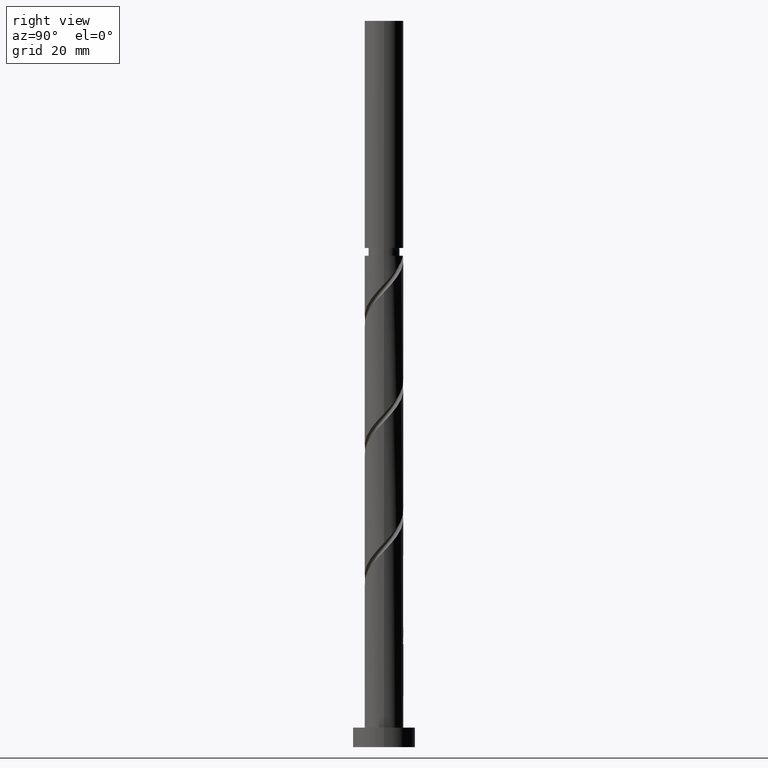
[diagram: clean part render]
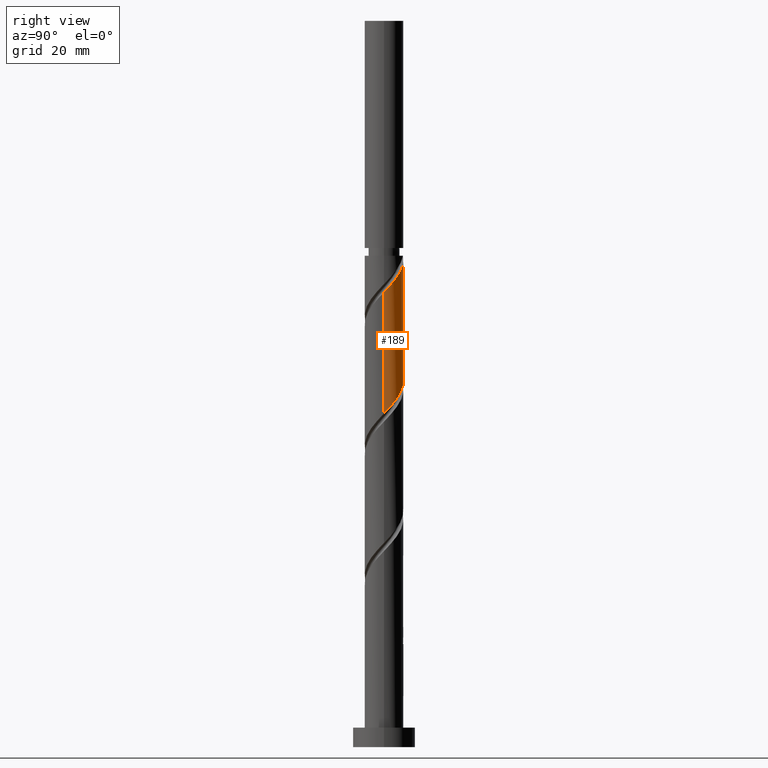
[diagram: same view with one face highlighted and labeled with its STEP entity id]
A machine part, right view. The second image highlights one B-rep face of the part: STEP entity #189.
In plain terms, the highlighted cylindrical surface (edge-blend (fillet) strip) has radius 5 mm, axis along (-0, -0, -1).
Its self-contained STEP definition (entity closure, byte-faithful):
#31 = DIRECTION ( 'NONE',  ( -0.000000000000000000, -0.000000000000000000, -1.000000000000000000 ) ) ;
#91 = CARTESIAN_POINT ( 'NONE',  ( 0.9949874371066220746, 4.899999999999997691, 93.19802294013305755 ) ) ;
#163 =( BOUNDED_CURVE ( )  B_SPLINE_CURVE ( 2, ( #531, #1087, #695, #288, #683, #1359, #1618, #996, #1523, #868, #741, #1399, #598, #1578, #91, #1298, #504, #916, #1609, #1716, #386, #250, #676, #1204, #405, #284, #801 ),
 .UNSPECIFIED., .F., .T. ) 
 B_SPLINE_CURVE_WITH_KNOTS ( ( 3, 2, 2, 2, 2, 2, 2, 2, 2, 2, 2, 2, 2, 3 ),
 ( 0.4295317669814462391, 0.4375000000000000000, 0.4479166666666666852, 0.4583333333333333148, 0.4687500000000000000, 0.4791666666666666852, 0.4895833333333333148, 0.5000000000000000000, 0.5104166666666666297, 0.5208333333333333703, 0.5312500000000000000, 0.5416666666666666297, 0.5520833333333333703, 0.5545317669814462391 ),
 .UNSPECIFIED. ) 
 CURVE ( )  GEOMETRIC_REPRESENTATION_ITEM ( )  RATIONAL_B_SPLINE_CURVE ( ( 0.9062941362546302893, 0.9031415850403345935, 0.9090909090909098378, 0.9013135103398283166, 0.9090909090909098378, 0.9013135103398283166, 0.9090909090909098378, 0.9013135103398283166, 0.9090909090909098378, 0.9013135103398283166, 0.9090909090909098378, 0.9013135103398283166, 0.9090909090909098378, 0.9013135103398283166, 0.9090909090909098378, 0.9013135103398283166, 0.9090909090909098378, 0.9013135103398283166, 0.9090909090909098378, 0.9013135103398283166, 0.9090909090909098378, 0.9013135103398283166, 0.9090909090909098378, 0.9013135103398283166, 0.9090909090909098378, 0.9072628343904035608, 0.9062941362546301782 ) ) 
 REPRESENTATION_ITEM ( '' )  );
#183 = AXIS2_PLACEMENT_3D ( 'NONE', #412, #672, #1466 ) ;
#189 = ADVANCED_FACE ( 'NONE', ( #1095 ), #800, .T. ) ;
#224 = CARTESIAN_POINT ( 'NONE',  ( 4.475514850455503790, 2.229297383336807936, 119.5869118290219149 ) ) ;
#250 = CARTESIAN_POINT ( 'NONE',  ( 4.531912481002539295, 2.212482489774409533, 88.33691182902195749 ) ) ;
#284 = CARTESIAN_POINT ( 'NONE',  ( 4.999999999999998224, 0.1537097582883687474, 86.09141995003794534 ) ) ;
#288 = CARTESIAN_POINT ( 'NONE',  ( -4.769007418836828549, 1.640084675284861015, 100.8369118290219291 ) ) ;
#295 = CARTESIAN_POINT ( 'NONE',  ( 1.588315603019300637, 4.741018197097065290, 123.7535784956886289 ) ) ;
#356 = EDGE_CURVE ( 'NONE', #1273, #1432, #613, .T. ) ;
#386 = CARTESIAN_POINT ( 'NONE',  ( 4.168385591787597377, 2.761260863840565349, 89.03135627346642877 ) ) ;
#400 = CARTESIAN_POINT ( 'NONE',  ( -4.999999999999997335, 0.000000000000000000, 126.5313562734664004 ) ) ;
#405 = CARTESIAN_POINT ( 'NONE',  ( 4.990558247177372841, 0.3071292586678937564, 86.25357849568864310 ) ) ;
#412 = CARTESIAN_POINT ( 'NONE',  ( 0.000000000000000000, 0.000000000000000000, 126.5313562734664004 ) ) ;
#472 = CARTESIAN_POINT ( 'NONE',  ( 5.000000000000009770, -1.869223055452522833E-15, 117.1344562849230044 ) ) ;
#478 = ORIENTED_EDGE ( 'NONE', *, *, #356, .F. ) ;
#490 = VERTEX_POINT ( 'NONE', #1029 ) ;
#498 = DIRECTION ( 'NONE',  ( -0.000000000000000000, -0.000000000000000000, -1.000000000000000000 ) ) ;
#504 = CARTESIAN_POINT ( 'NONE',  ( 2.229297383336810157, 4.475514850455490468, 91.80913405124415760 ) ) ;
#531 = CARTESIAN_POINT ( 'NONE',  ( -4.999999999999998224, -2.871126613175101240E-15, 102.5949229286764535 ) ) ;
#552 = DIRECTION ( 'NONE',  ( -1.000000000000000000, 0.000000000000000000, 0.000000000000000000 ) ) ;
#595 = EDGE_LOOP ( 'NONE', ( #1388, #1161, #1382, #478, #1449 ) ) ;
#598 = CARTESIAN_POINT ( 'NONE',  ( -0.3071292586678960879, 4.990558247177372841, 94.58691182902197170 ) ) ;
#613 = LINE ( 'NONE', #763, #1022 ) ;
#625 = EDGE_CURVE ( 'NONE', #1424, #1001, #1490, .T. ) ;
#644 = CARTESIAN_POINT ( 'NONE',  ( 3.746030759990448100, 3.311684396980707046, 120.9758007179108290 ) ) ;
#672 = DIRECTION ( 'NONE',  ( -0.000000000000000000, -0.000000000000000000, -1.000000000000000000 ) ) ;
#676 = CARTESIAN_POINT ( 'NONE',  ( 4.741018197097059961, 1.588315603019290201, 87.64246738457752883 ) ) ;
#683 = CARTESIAN_POINT ( 'NONE',  ( -4.475514850455492244, 2.229297383336808380, 100.1424673845775146 ) ) ;
#695 = CARTESIAN_POINT ( 'NONE',  ( -4.899999999999997691, 0.9949874371066209644, 101.5313562734663861 ) ) ;
#732 = VECTOR ( 'NONE', #31, 1000.000000000000000 ) ;
#741 = CARTESIAN_POINT ( 'NONE',  ( -1.588315603019294198, 4.741018197097059073, 95.97580071791084322 ) ) ;
#763 = CARTESIAN_POINT ( 'NONE',  ( -5.000000000000000000, 0.000000000000000000, 187.0000000000000000 ) ) ;
#773 = CARTESIAN_POINT ( 'NONE',  ( 4.182022282074167485, 2.818510091388755079, 120.2813562734664288 ) ) ;
#795 = CARTESIAN_POINT ( 'NONE',  ( 5.000000000000000000, 6.123233995736766282E-16, 187.0000000000000000 ) ) ;
#797 = EDGE_CURVE ( 'NONE', #1432, #1001, #163, .T. ) ;
#800 = CYLINDRICAL_SURFACE ( 'NONE', #1749, 5.000000000000000000 ) ;
#801 = CARTESIAN_POINT ( 'NONE',  ( 4.999999999999999112, 6.968463550727070010E-15, 85.92825626200981048 ) ) ;
#821 = CARTESIAN_POINT ( 'NONE',  ( 4.900000000000008349, 0.9949874371066211864, 118.1980229401330433 ) ) ;
#836 = EDGE_CURVE ( 'NONE', #1424, #490, #1390, .T. ) ;
#860 = CARTESIAN_POINT ( 'NONE',  ( 3.310039237906730492, 3.804858702572660345, 121.6702451623553145 ) ) ;
#868 = CARTESIAN_POINT ( 'NONE',  ( -2.212482489774413086, 4.531912481002537518, 96.67024516235530029 ) ) ;
#916 = CARTESIAN_POINT ( 'NONE',  ( 2.818510091388755079, 4.182022282074153274, 91.11468960679974316 ) ) ;
#996 = CARTESIAN_POINT ( 'NONE',  ( -3.310039237906718945, 3.804858702572656348, 98.05913405124417181 ) ) ;
#1001 = VERTEX_POINT ( 'NONE', #1526 ) ;
#1022 = VECTOR ( 'NONE', #498, 1000.000000000000000 ) ;
#1029 = CARTESIAN_POINT ( 'NONE',  ( -0.9949874371066207424, 4.900000000000009237, 126.5313562734664004 ) ) ;
#1070 = DIRECTION ( 'NONE',  ( -0.000000000000000000, -0.000000000000000000, -1.000000000000000000 ) ) ;
#1087 = CARTESIAN_POINT ( 'NONE',  ( -4.999999999999999112, 0.5025189076296057156, 102.0614965594871819 ) ) ;
#1095 = FACE_OUTER_BOUND ( 'NONE', #595, .T. ) ;
#1106 = CARTESIAN_POINT ( 'NONE',  ( 0.3071292586679018610, 4.990558247177382611, 125.1424673845775146 ) ) ;
#1108 = CARTESIAN_POINT ( 'NONE',  ( -4.999999999999998224, -2.871126613175101240E-15, 102.5949229286764535 ) ) ;
#1161 = ORIENTED_EDGE ( 'NONE', *, *, #625, .T. ) ;
#1204 = CARTESIAN_POINT ( 'NONE',  ( 4.950123913191579739, 0.9641487162641707576, 86.94802294013305755 ) ) ;
#1225 = CARTESIAN_POINT ( 'NONE',  ( 0.9641487162641800834, 4.950123913191589509, 124.4480229401330433 ) ) ;
#1252 = EDGE_CURVE ( 'NONE', #1273, #490, #1708, .T. ) ;
#1273 = VERTEX_POINT ( 'NONE', #400 ) ;
#1294 = CARTESIAN_POINT ( 'NONE',  ( 2.761260863840573343, 4.168385591787602706, 122.3646896067997432 ) ) ;
#1298 = CARTESIAN_POINT ( 'NONE',  ( 1.640084675284864790, 4.769007418836825885, 92.50357849568862889 ) ) ;
#1300 = CARTESIAN_POINT ( 'NONE',  ( -0.9949874371066207424, 4.900000000000009237, 126.5313562734664004 ) ) ;
#1357 = CARTESIAN_POINT ( 'NONE',  ( 0.000000000000000000, 0.000000000000000000, 187.0000000000000000 ) ) ;
#1359 = CARTESIAN_POINT ( 'NONE',  ( -4.182022282074155939, 2.818510091388752858, 99.44802294013308597 ) ) ;
#1377 = CARTESIAN_POINT ( 'NONE',  ( 5.000000000000009770, -1.869223055452522833E-15, 117.1344562849230044 ) ) ;
#1382 = ORIENTED_EDGE ( 'NONE', *, *, #797, .F. ) ;
#1388 = ORIENTED_EDGE ( 'NONE', *, *, #836, .F. ) ;
#1390 =( BOUNDED_CURVE ( )  B_SPLINE_CURVE ( 2, ( #472, #1492, #821, #1415, #224, #773, #644, #860, #1294, #1451, #295, #1225, #1106, #1431, #1300 ),
 .UNSPECIFIED., .F., .T. ) 
 B_SPLINE_CURVE_WITH_KNOTS ( ( 3, 2, 2, 2, 2, 2, 2, 3 ),
 ( 0.6795317669814463502, 0.6875000000000000000, 0.6979166666666667407, 0.7083333333333332593, 0.7187500000000000000, 0.7291666666666667407, 0.7395833333333332593, 0.7500000000000000000 ),
 .UNSPECIFIED. ) 
 CURVE ( )  GEOMETRIC_REPRESENTATION_ITEM ( )  RATIONAL_B_SPLINE_CURVE ( ( 0.9062941362546387269, 0.9031415850403430312, 0.9090909090909183865, 0.9013135103398366432, 0.9090909090909183865, 0.9013135103398366432, 0.9090909090909183865, 0.9013135103398366432, 0.9090909090909183865, 0.9013135103398366432, 0.9090909090909183865, 0.9013135103398366432, 0.9090909090909183865, 0.9013135103398366432, 0.9090909090909183865 ) ) 
 REPRESENTATION_ITEM ( '' )  );
#1399 = CARTESIAN_POINT ( 'NONE',  ( -0.9641487162641736441, 4.950123913191579739, 95.28135627346638614 ) ) ;
#1415 = CARTESIAN_POINT ( 'NONE',  ( 4.769007418836840984, 1.640084675284861682, 118.8924673845775430 ) ) ;
#1424 = VERTEX_POINT ( 'NONE', #1377 ) ;
#1431 = CARTESIAN_POINT ( 'NONE',  ( -0.3498901989283760283, 5.030992581163177491, 125.8369118290219575 ) ) ;
#1432 = VERTEX_POINT ( 'NONE', #1108 ) ;
#1449 = ORIENTED_EDGE ( 'NONE', *, *, #1252, .T. ) ;
#1451 = CARTESIAN_POINT ( 'NONE',  ( 2.212482489774421079, 4.531912481002545512, 123.0591340512441860 ) ) ;
#1466 = DIRECTION ( 'NONE',  ( -1.000000000000000000, 0.000000000000000000, 0.000000000000000000 ) ) ;
#1490 = LINE ( 'NONE', #795, #732 ) ;
#1492 = CARTESIAN_POINT ( 'NONE',  ( 5.000000000000007105, 0.5025189076296104895, 117.6678826541122760 ) ) ;
#1523 = CARTESIAN_POINT ( 'NONE',  ( -2.761260863840566682, 4.168385591787596489, 97.36468960679974316 ) ) ;
#1526 = CARTESIAN_POINT ( 'NONE',  ( 4.999999999999999112, 6.968463550727070010E-15, 85.92825626200981048 ) ) ;
#1578 = CARTESIAN_POINT ( 'NONE',  ( 0.3498901989283815239, 5.030992581163166832, 93.89246738457751462 ) ) ;
#1609 = CARTESIAN_POINT ( 'NONE',  ( 3.311684396980706158, 3.746030759990436554, 90.42024516235527187 ) ) ;
#1618 = CARTESIAN_POINT ( 'NONE',  ( -3.746030759990437886, 3.311684396980704825, 98.75357849568861468 ) ) ;
#1708 = CIRCLE ( 'NONE', #183, 4.999999999999997335 ) ;
#1716 = CARTESIAN_POINT ( 'NONE',  ( 3.804858702572658125, 3.310039237906717613, 89.72580071791084322 ) ) ;
#1749 = AXIS2_PLACEMENT_3D ( 'NONE', #1357, #1070, #552 ) ;